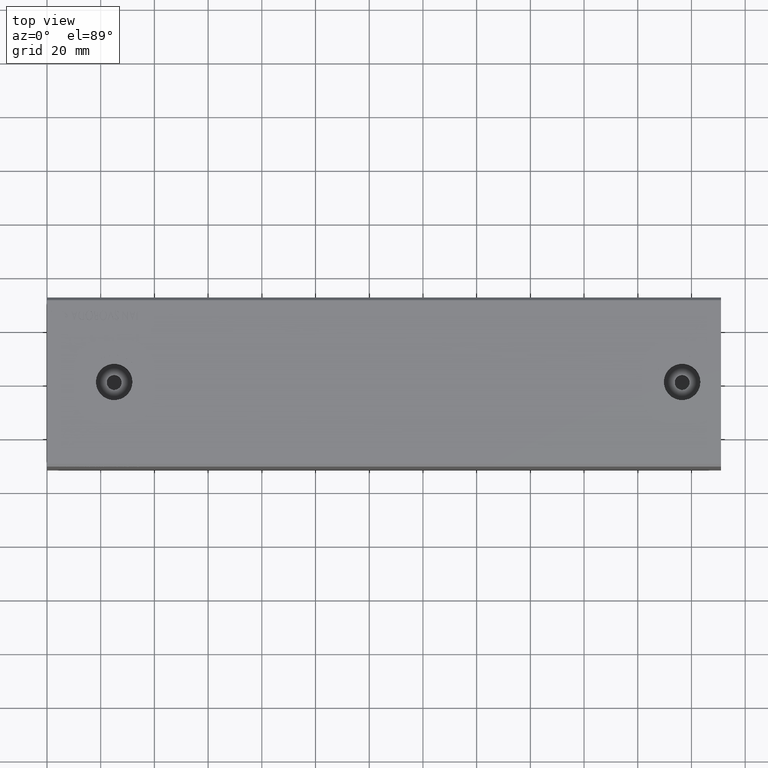
[diagram: clean part render]
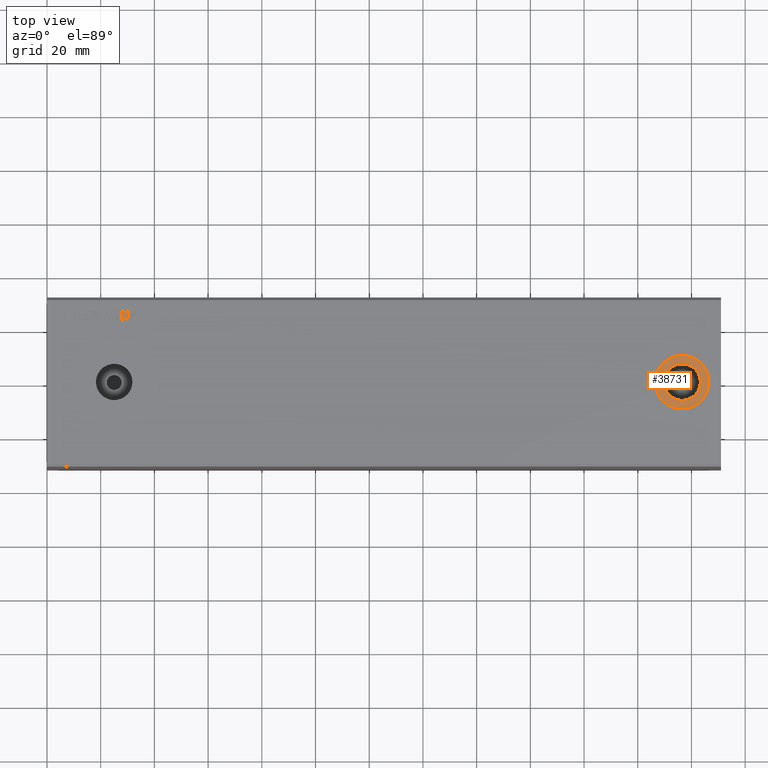
[diagram: same view with one face highlighted and labeled with its STEP entity id]
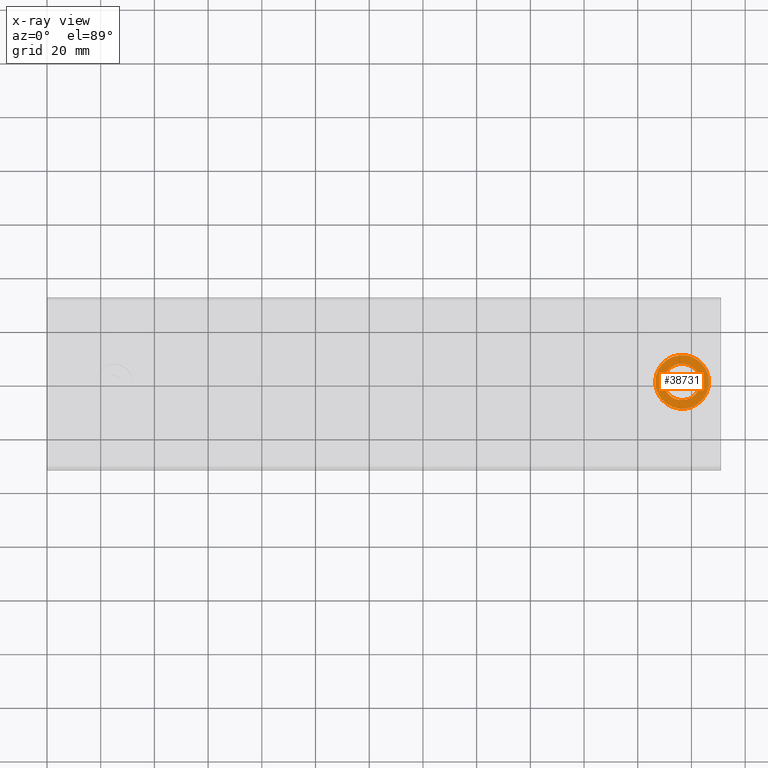
[diagram: x-ray of the same camera — body ghosted, the highlighted face saturated]
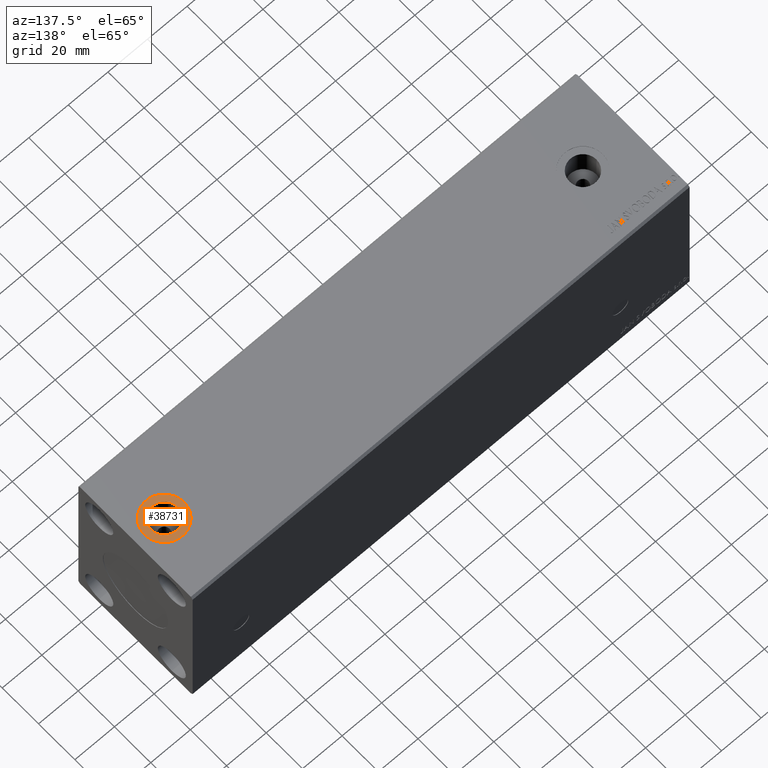
[diagram: same view with one face highlighted and labeled with its STEP entity id]
A machine part, top view. The second image highlights one B-rep face of the part: STEP entity #38731.
The next image is the same camera in x-ray: the body ghosted, the highlighted face saturated — about 0% of this face is hidden behind the body in this view.
A second angle (auxiliary view) of the same face is appended — the face is thin or edge-on in the first view.
In plain terms, the highlighted planar face has unit normal (0, 0, 1).
Its self-contained STEP definition (entity closure, byte-faithful):
#485 = AXIS2_PLACEMENT_3D ( 'NONE', #28346, #42285, #41443 ) ;
#1458 = DIRECTION ( 'NONE',  ( 0.000000000000000000, 0.000000000000000000, 1.000000000000000000 ) ) ;
#1612 = DIRECTION ( 'NONE',  ( 0.000000000000000000, 0.000000000000000000, 1.000000000000000000 ) ) ;
#1663 = EDGE_CURVE ( 'NONE', #12807, #34680, #21970, .T. ) ;
#2889 = DIRECTION ( 'NONE',  ( 1.000000000000000000, 0.000000000000000000, 0.000000000000000000 ) ) ;
#3674 = VERTEX_POINT ( 'NONE', #33439 ) ;
#5418 = VERTEX_POINT ( 'NONE', #17408 ) ;
#5489 = CARTESIAN_POINT ( 'NONE',  ( 236.5000000000000000, 0.000000000000000000, 42.39999999999999147 ) ) ;
#5898 = CARTESIAN_POINT ( 'NONE',  ( 236.5000000000000000, 0.000000000000000000, 42.39999999999999147 ) ) ;
#6700 = AXIS2_PLACEMENT_3D ( 'NONE', #5489, #18178, #41147 ) ;
#8810 = EDGE_CURVE ( 'NONE', #5418, #3674, #18678, .T. ) ;
#9757 = EDGE_LOOP ( 'NONE', ( #22798, #35258 ) ) ;
#10870 = FACE_OUTER_BOUND ( 'NONE', #9757, .T. ) ;
#11289 = FACE_BOUND ( 'NONE', #24504, .T. ) ;
#12807 = VERTEX_POINT ( 'NONE', #26143 ) ;
#14196 = CARTESIAN_POINT ( 'NONE',  ( 229.6999999999999886, 8.327598234201995202E-16, 42.39999999999999147 ) ) ;
#14294 = PLANE ( 'NONE',  #15662 ) ;
#15662 = AXIS2_PLACEMENT_3D ( 'NONE', #37486, #1612, #37695 ) ;
#16622 = AXIS2_PLACEMENT_3D ( 'NONE', #5898, #1458, #2889 ) ;
#17011 = CIRCLE ( 'NONE', #6700, 10.00000000000000888 ) ;
#17408 = CARTESIAN_POINT ( 'NONE',  ( 246.5000000000000000, 0.000000000000000000, 42.39999999999999147 ) ) ;
#18178 = DIRECTION ( 'NONE',  ( 0.000000000000000000, 0.000000000000000000, 1.000000000000000000 ) ) ;
#18678 = CIRCLE ( 'NONE', #16622, 10.00000000000000888 ) ;
#21269 = CARTESIAN_POINT ( 'NONE',  ( 236.5000000000000000, 0.000000000000000000, 42.39999999999999147 ) ) ;
#21970 = CIRCLE ( 'NONE', #40435, 6.800000000000000711 ) ;
#22798 = ORIENTED_EDGE ( 'NONE', *, *, #8810, .T. ) ;
#24504 = EDGE_LOOP ( 'NONE', ( #32170, #41920 ) ) ;
#25161 = CIRCLE ( 'NONE', #485, 6.800000000000000711 ) ;
#26143 = CARTESIAN_POINT ( 'NONE',  ( 243.2999999999999829, 0.000000000000000000, 42.39999999999999147 ) ) ;
#27509 = EDGE_CURVE ( 'NONE', #34680, #12807, #25161, .T. ) ;
#28346 = CARTESIAN_POINT ( 'NONE',  ( 236.5000000000000000, 0.000000000000000000, 42.39999999999999147 ) ) ;
#32170 = ORIENTED_EDGE ( 'NONE', *, *, #1663, .F. ) ;
#33439 = CARTESIAN_POINT ( 'NONE',  ( 226.4999999999999716, 1.224646799147354440E-15, 42.39999999999999147 ) ) ;
#34345 = DIRECTION ( 'NONE',  ( 1.000000000000000000, 0.000000000000000000, 0.000000000000000000 ) ) ;
#34680 = VERTEX_POINT ( 'NONE', #14196 ) ;
#35258 = ORIENTED_EDGE ( 'NONE', *, *, #37301, .T. ) ;
#37301 = EDGE_CURVE ( 'NONE', #3674, #5418, #17011, .T. ) ;
#37486 = CARTESIAN_POINT ( 'NONE',  ( 236.5000000000000000, 0.000000000000000000, 42.39999999999999147 ) ) ;
#37695 = DIRECTION ( 'NONE',  ( 1.000000000000000000, 0.000000000000000000, -0.000000000000000000 ) ) ;
#38731 = ADVANCED_FACE ( 'NONE', ( #11289, #10870 ), #14294, .T. ) ;
#40435 = AXIS2_PLACEMENT_3D ( 'NONE', #21269, #41006, #34345 ) ;
#41006 = DIRECTION ( 'NONE',  ( 0.000000000000000000, 0.000000000000000000, 1.000000000000000000 ) ) ;
#41147 = DIRECTION ( 'NONE',  ( 1.000000000000000000, 0.000000000000000000, 0.000000000000000000 ) ) ;
#41443 = DIRECTION ( 'NONE',  ( 1.000000000000000000, 0.000000000000000000, 0.000000000000000000 ) ) ;
#41920 = ORIENTED_EDGE ( 'NONE', *, *, #27509, .F. ) ;
#42285 = DIRECTION ( 'NONE',  ( 0.000000000000000000, 0.000000000000000000, 1.000000000000000000 ) ) ;